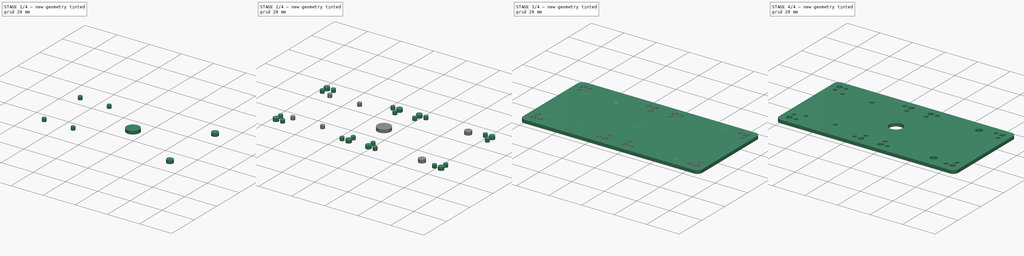
[diagram: build sequence overview — one tinted view per stage of 4, left to right]
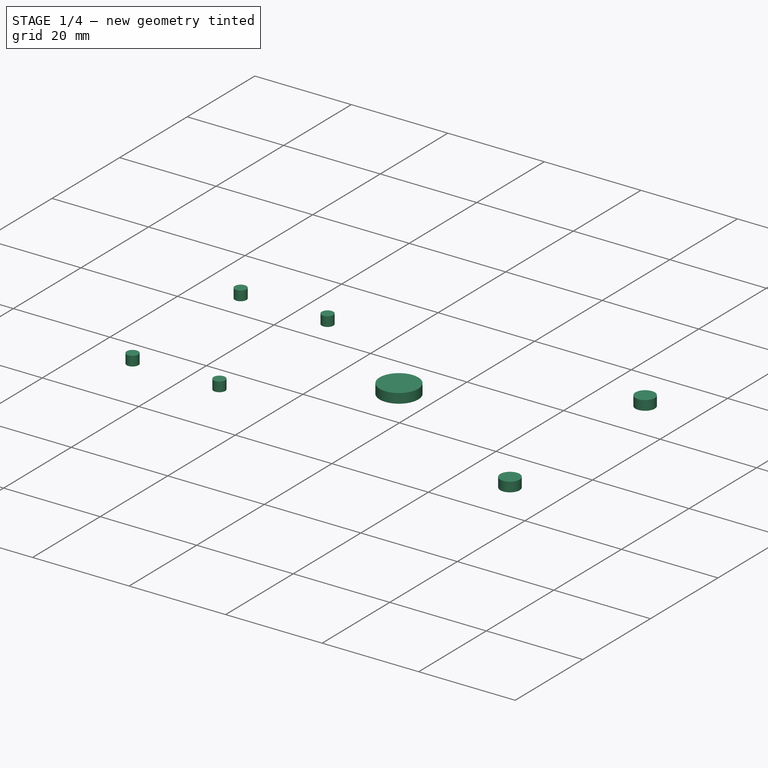
[diagram: stage 1 of 4 — iso view after this stage's code; geometry added in this stage tinted green]
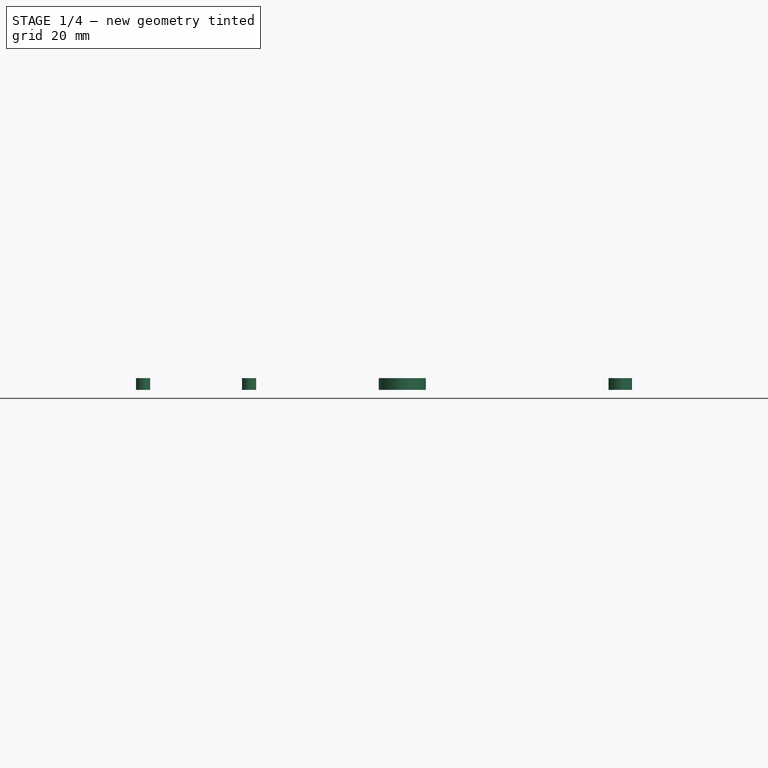
[diagram: stage 1 of 4 — front view after this stage's code; geometry added in this stage tinted green]
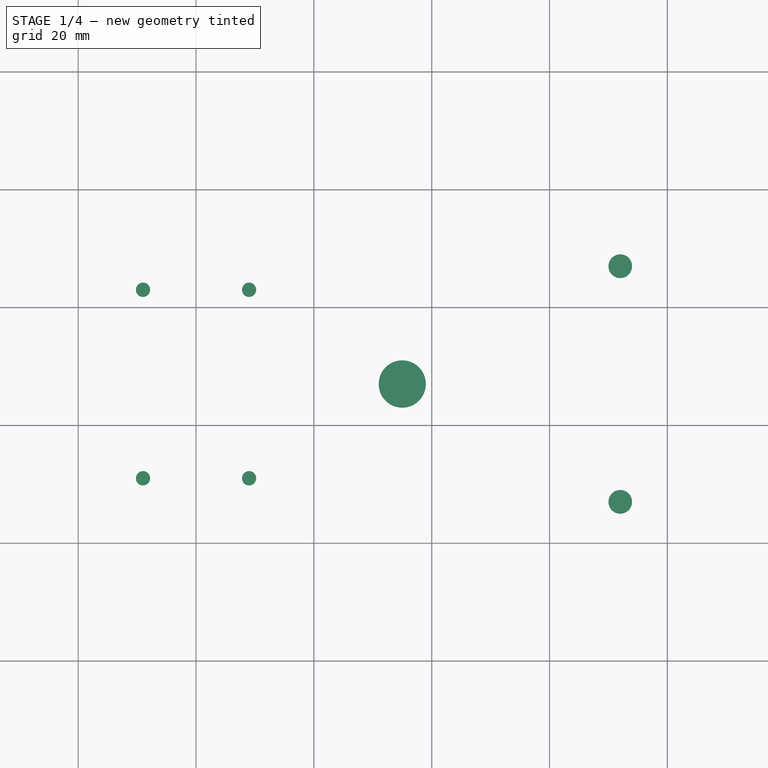
[diagram: stage 1 of 4 — top view after this stage's code; geometry added in this stage tinted green]
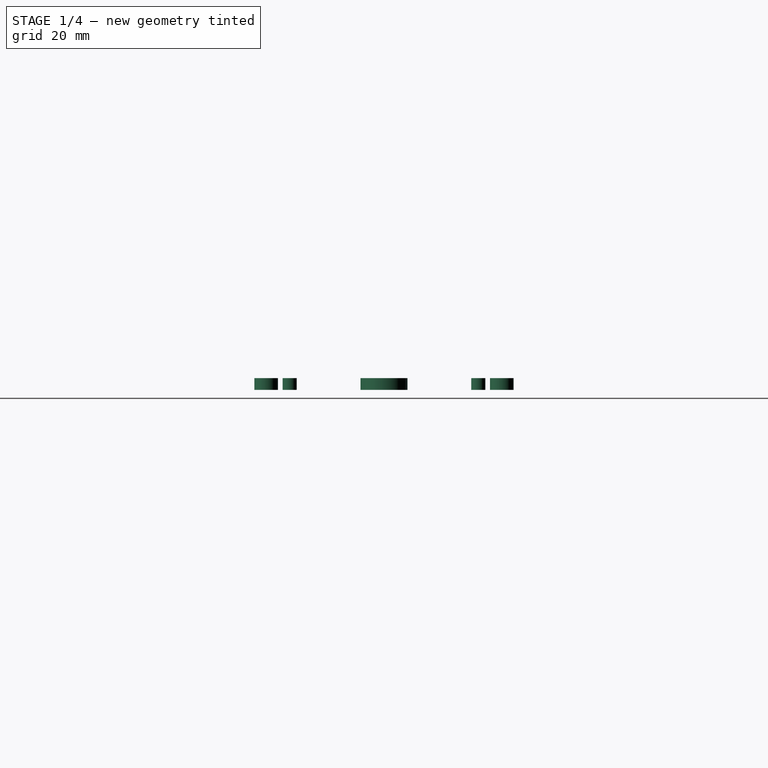
[diagram: stage 1 of 4 — right view after this stage's code; geometry added in this stage tinted green]
FCSTD DOCUMENT  (FreeCAD 0.18.4R)
Label: plate
License: All rights reserved
LicenseURL: http://en.wikipedia.org/wiki/All_rights_reserved
objects: Sketcher::SketchObject×5, Part::Extrusion×5, Part::Cut×4, Part::Mirroring×1, Part::Fuse×1, Spreadsheet::Sheet×1
note: 16 computed .brp shape members not serialized (recipe doc carries the construction recipe); baked Part::Feature solids carry a one-line shape summary decoded from their .brp

FEATURE [Sketcher::SketchObject] Sketch003
  expr: Constraints[11] = Spreadsheet.base_plate_y_length
  expr: Constraints[10] = Spreadsheet.base_plate_x_length
  sketch-geometry (11):
    g0: LineSegment [constr] StartX=0 StartY=54 StartZ=0 EndX=110 EndY=54 EndZ=0
    g1: LineSegment [constr] StartX=110 StartY=54 StartZ=0 EndX=110 EndY=0 EndZ=0
    g2: LineSegment [constr] StartX=110 StartY=0 StartZ=0 EndX=0 EndY=0 EndZ=0
    g3: LineSegment [constr] StartX=0 StartY=0 StartZ=0 EndX=0 EndY=54 EndZ=0
    g4: Circle CenterX=92 CenterY=7 CenterZ=0 NormalX=0 NormalY=0 NormalZ=1 AngleXU=0 Radius=2
    g5: Circle CenterX=92 CenterY=47 CenterZ=0 NormalX=0 NormalY=0 NormalZ=1 AngleXU=0 Radius=2
    g6: LineSegment [constr] StartX=92 StartY=47 StartZ=0 EndX=92 EndY=27 EndZ=0
    g7: LineSegment [constr] StartX=92 StartY=7 StartZ=0 EndX=92 EndY=27 EndZ=0
    g8: LineSegment [constr] StartX=92 StartY=7 StartZ=0 EndX=92 EndY=0 EndZ=0
    g9: LineSegment [constr] StartX=92 StartY=47 StartZ=0 EndX=92 EndY=54 EndZ=0
    g10: LineSegment [constr] StartX=92 StartY=47 StartZ=0 EndX=110 EndY=47 EndZ=0
  constraints (32):
    c: Coincident(g0,g1)
    c: Coincident(g1,g2)
    c: Coincident(g2,g3)
    c: Coincident(g3,g0)
    c: Horizontal(g0)
    c: Horizontal(g2)
    c: Vertical(g1)
    c: Vertical(g3)
    c: PointOnObject(g0,g-2)
    c: PointOnObject(g1,g-1)
    c: DistanceY(g1,g1) = 54
    c: DistanceX(g0,g0) = 110
    c: Radius(g4) = 2
    c: Equal(g4,g5) = 2
    c: Coincident(g6,g5)
    c: Vertical(g6)
    c: Coincident(g7,g4)
    c: Coincident(g7,g6)
    c: Vertical(g7)
    c: Equal(g6,g7)
    c: Coincident(g8,g4)
    c: PointOnObject(g8,g2)
    c: Vertical(g8)
    c: Coincident(g9,g5)
    c: PointOnObject(g9,g0)
    c: Vertical(g9)
    c: Equal(g9,g8)
    c: DistanceY(g6,g6) = 20
    c: Coincident(g10,g5)
    c: PointOnObject(g10,g1)
    c: Horizontal(g10)
    c: Distance(g10) = 18
FEATURE [Part::Extrusion] Extrude003
  Base = -> Sketch003
  Dir = (0,0,1)
  DirMode = 2
  FaceMakerClass = Part::FaceMakerBullseye
  LengthFwd = 2
  LengthRev = 0
  Solid = true
  Symmetric = false
FEATURE [Sketcher::SketchObject] Sketch006
  expr: Constraints[24] = Spreadsheet.motor_mount_holes_from_center_y
  expr: Constraints[45] = Spreadsheet.motors_plate_center_x_from_o
  expr: Constraints[17] = Spreadsheet.motors_plate_holes_span_x
  expr: Constraints[25] = Spreadsheet.base_plate_x_length
  sketch-geometry (18):
    g0: Circle CenterX=11 CenterY=11 CenterZ=0 NormalX=0 NormalY=0 NormalZ=1 AngleXU=0 Radius=1.2
    g1: Circle CenterX=29 CenterY=11 CenterZ=0 NormalX=0 NormalY=0 NormalZ=1 AngleXU=0 Radius=1.2
    g2: LineSegment [constr] StartX=11 StartY=11 StartZ=0 EndX=11 EndY=0 EndZ=0
    g3: LineSegment [constr] StartX=29 StartY=11 StartZ=0 EndX=29 EndY=0 EndZ=0
    g4: Circle CenterX=11 CenterY=43 CenterZ=0 NormalX=0 NormalY=0 NormalZ=1 AngleXU=0 Radius=1.2
    g5: Circle CenterX=29 CenterY=43 CenterZ=0 NormalX=0 NormalY=0 NormalZ=1 AngleXU=0 Radius=1.2
    g6: LineSegment [constr] StartX=11 StartY=43 StartZ=0 EndX=11 EndY=54 EndZ=0
    g7: LineSegment [constr] StartX=29 StartY=43 StartZ=0 EndX=29 EndY=54 EndZ=0
    g8: LineSegment [constr] StartX=20 StartY=0 StartZ=0 EndX=20 EndY=11 EndZ=0
    g9: LineSegment [constr] StartX=20 StartY=27 StartZ=0 EndX=20 EndY=43 EndZ=0
    g10: LineSegment [constr] StartX=20 StartY=43 StartZ=0 EndX=20 EndY=54 EndZ=0
    g11: LineSegment [constr] StartX=20 StartY=27 StartZ=0 EndX=20 EndY=11 EndZ=0
    g12: LineSegment [constr] StartX=11 StartY=54 StartZ=0 EndX=29 EndY=54 EndZ=0
    g13: LineSegment [constr] StartX=11 StartY=43 StartZ=0 EndX=11 EndY=11 EndZ=0
    g14: LineSegment [constr] StartX=29 StartY=43 StartZ=0 EndX=29 EndY=11 EndZ=0
    g15: LineSegment [constr] StartX=11 StartY=11 StartZ=0 EndX=20 EndY=11 EndZ=0
    g16: LineSegment [constr] StartX=29 StartY=11 StartZ=0 EndX=20 EndY=11 EndZ=0
    g17: LineSegment [constr] StartX=11 StartY=43 StartZ=0 EndX=20 EndY=43 EndZ=0
  constraints (49):
    c: Radius(g0) = 1.2
    c: Equal(g0,g1)
    c: Coincident(g2,g0)
    c: PointOnObject(g2,g-1)
    c: Vertical(g2)
    c: Coincident(g3,g1)
    c: PointOnObject(g3,g-1)
    c: Vertical(g3)
    c: Equal(g0,g4) = 1.2
    c: Equal(g4,g5)
    c: Coincident(g6,g4)
    c: Vertical(g6)
    c: Coincident(g7,g5)
    c: Vertical(g7)
    c: Equal(g7,g6)
    c: Equal(g6,g2)
    c: Equal(g2,g3)
    c: DistanceX(g4,g5) = 18
    c: PointOnObject(g8,g-1)
    c: Vertical(g9)
    c: Vertical(g10)
    c: Coincident(g11,g9)
    c: Vertical(g11)
    c: Equal(g9,g11)
    c: DistanceY(g9,g9) = 16
    c: DistanceY(g8,g10) = 54
    c: Vertical(g8)
    c: Coincident(g10,g9)
    c: Coincident(g8,g11)
    c: Coincident(g12,g6)
    c: Coincident(g12,g7)
    c: Horizontal(g12)
    c: PointOnObject(g10,g12)
    c: Coincident(g13,g4)
    c: Coincident(g13,g0)
    c: Vertical(g13)
    c: Coincident(g14,g5)
    c: Coincident(g14,g1)
    c: Vertical(g14)
    c: Coincident(g15,g0)
    c: Coincident(g15,g8)
    c: Coincident(g16,g1)
    c: Coincident(g16,g8)
    c: Horizontal(g15)
    c: Equal(g16,g15)
    c: DistanceX(g-1,g8) = 20
    c: Coincident(g17,g4)
    c: Coincident(g17,g9)
    c: Horizontal(g17)
FEATURE [Part::Extrusion] Extrude006
  Base = -> Sketch006
  Dir = (0,0,1)
  DirMode = 2
  FaceMakerClass = Part::FaceMakerBullseye
  LengthFwd = 2
  LengthRev = 0
  Solid = true
  Symmetric = false
FEATURE [Spreadsheet::Sheet] Spreadsheet
  cells = A1=Name; B1=Value; A2=Motors plate center x from o; B2(motors_plate_center_x_from_o)=20; A3=Motors plate holes span x; B3(motors_plate_holes_span_x)=18; A4=Motor mount holes from center y; B4(motor_mount_holes_from_center_y)=16; A5=Base plate length x; B5(base_plate_x_length)=54; A6=Base plate length y; B6(base_plate_y_length)=110
FEATURE [Sketcher::SketchObject] Sketch007
  expr: Constraints[8] = Spreadsheet.base_plate_y_length / 2
  expr: Constraints[7] = Spreadsheet.base_plate_x_length
  sketch-geometry (4):
    g0: Circle CenterX=55 CenterY=27 CenterZ=0 NormalX=0 NormalY=0 NormalZ=1 AngleXU=0 Radius=4
    g1: LineSegment [constr] StartX=55 StartY=54 StartZ=0 EndX=55 EndY=27 EndZ=0
    g2: LineSegment [constr] StartX=55 StartY=27 StartZ=0 EndX=55 EndY=0 EndZ=0
    g3: LineSegment [constr] StartX=55 StartY=54 StartZ=0 EndX=0 EndY=54 EndZ=0
  constraints (12):
    c: Coincident(g1,g0)
    c: PointOnObject(g2,g-1)
    c: PointOnObject(g3,g-2)
    c: Horizontal(g3)
    c: Vertical(g1)
    c: Vertical(g2)
    c: Coincident(g0,g2)
    c: DistanceY(g-1,g3) = 54
    c: DistanceX(g3,g3) = 55
    c: Coincident(g3,g1)
    c: Radius(g0) = 4
    c: Equal(g1,g2)
FEATURE [Part::Extrusion] Extrude008
  Base = -> Sketch007
  Dir = (0,0,1)
  DirMode = 2
  FaceMakerClass = Part::FaceMakerBullseye
  LengthFwd = 2
  LengthRev = 0
  Solid = true
  Symmetric = false
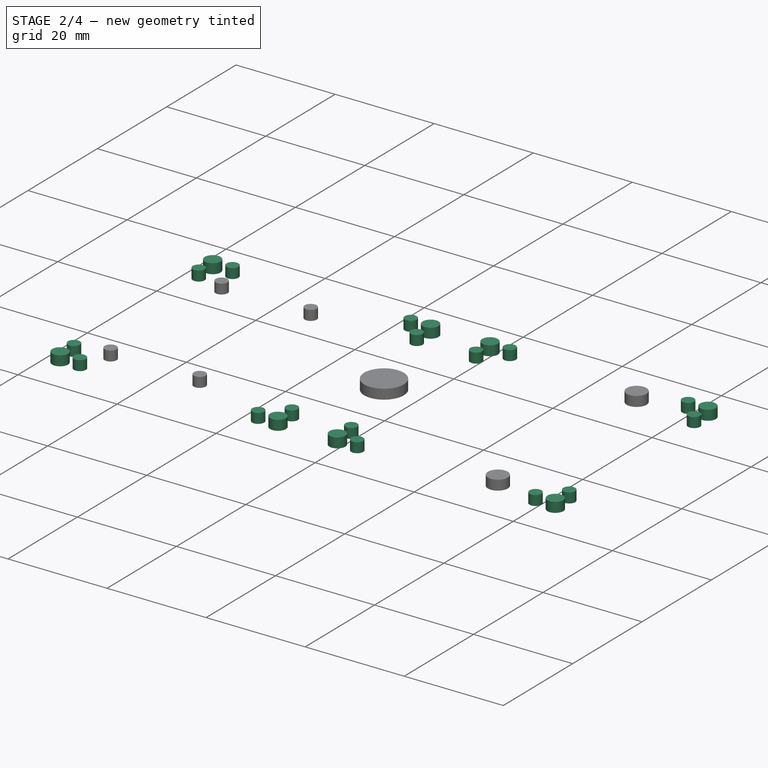
[diagram: stage 2 of 4 — iso view after this stage's code; geometry added in this stage tinted green]
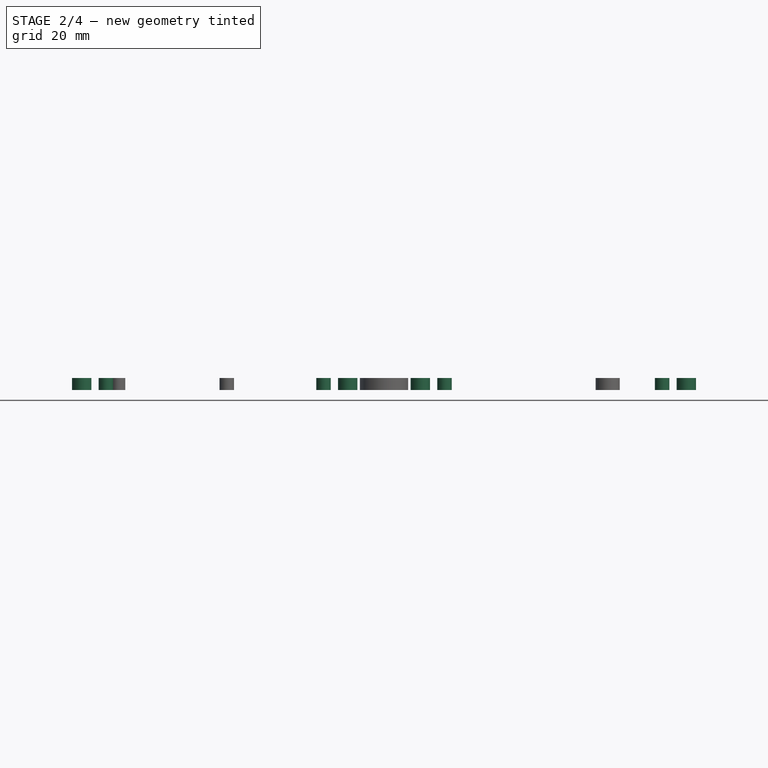
[diagram: stage 2 of 4 — front view after this stage's code; geometry added in this stage tinted green]
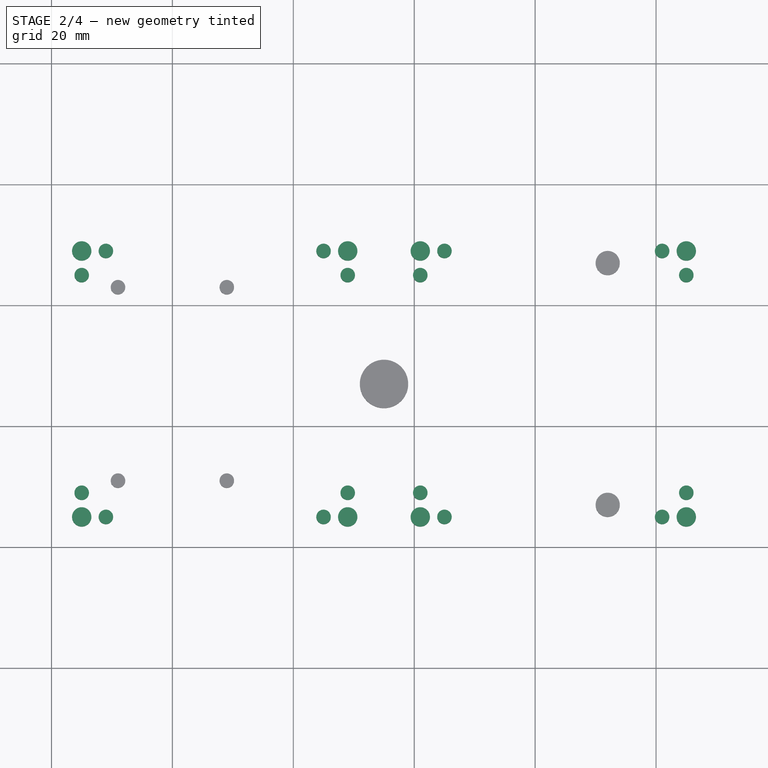
[diagram: stage 2 of 4 — top view after this stage's code; geometry added in this stage tinted green]
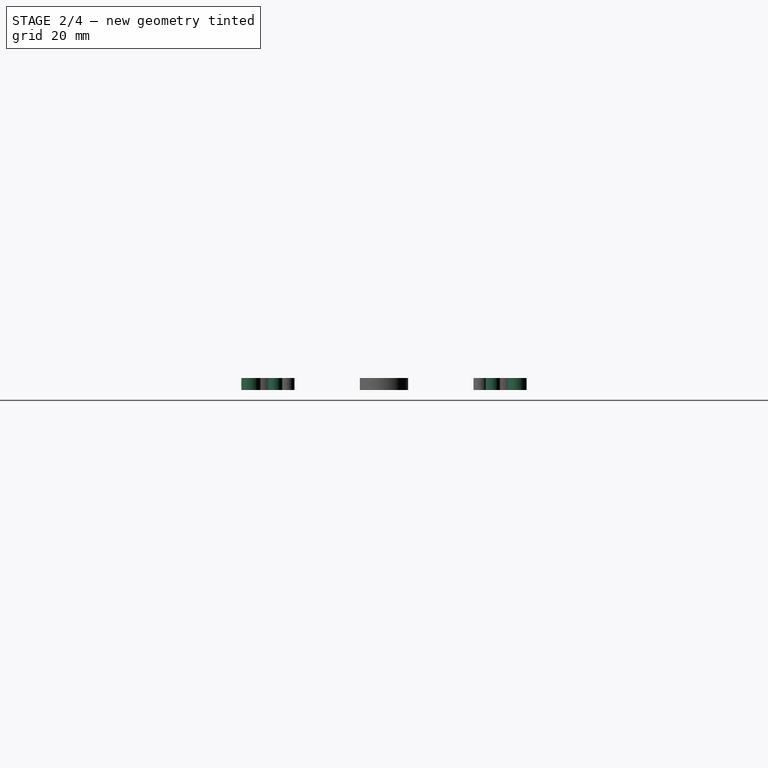
[diagram: stage 2 of 4 — right view after this stage's code; geometry added in this stage tinted green]
FEATURE [Sketcher::SketchObject] Sketch002
  expr: Constraints[10] = Spreadsheet.base_plate_y_length
  expr: Constraints[11] = Spreadsheet.base_plate_x_length
  sketch-geometry (30):
    g0: LineSegment [constr] StartX=0 StartY=54 StartZ=0 EndX=110 EndY=54 EndZ=0
    g1: LineSegment [constr] StartX=110 StartY=54 StartZ=0 EndX=110 EndY=0 EndZ=0
    g2: LineSegment [constr] StartX=110 StartY=0 StartZ=0 EndX=0 EndY=0 EndZ=0
    g3: LineSegment [constr] StartX=0 StartY=0 StartZ=0 EndX=0 EndY=54 EndZ=0
    g4: Circle CenterX=5 CenterY=5 CenterZ=0 NormalX=0 NormalY=0 NormalZ=1 AngleXU=0 Radius=1.6
    g5: Circle CenterX=49 CenterY=5 CenterZ=0 NormalX=0 NormalY=0 NormalZ=1 AngleXU=0 Radius=1.6
    g6: LineSegment [constr] StartX=5 StartY=5 StartZ=0 EndX=49 EndY=5 EndZ=0
    g7: Circle CenterX=5 CenterY=49 CenterZ=0 NormalX=0 NormalY=0 NormalZ=1 AngleXU=0 Radius=1.6
    g8: Circle CenterX=49 CenterY=49 CenterZ=0 NormalX=0 NormalY=0 NormalZ=1 AngleXU=0 Radius=1.6
    g9: LineSegment [constr] StartX=5 StartY=49 StartZ=0 EndX=49 EndY=49 EndZ=0
    g10: LineSegment [constr] StartX=5 StartY=49 StartZ=0 EndX=5 EndY=5 EndZ=0
    g11: LineSegment [constr] StartX=5 StartY=49 StartZ=0 EndX=5 EndY=54 EndZ=0
    g12: LineSegment [constr] StartX=5 StartY=5 StartZ=0 EndX=5 EndY=0 EndZ=0
    g13: LineSegment [constr] StartX=5 StartY=5 StartZ=0 EndX=0 EndY=5 EndZ=0
    g14: Circle CenterX=45 CenterY=49 CenterZ=0 NormalX=0 NormalY=0 NormalZ=1 AngleXU=0 Radius=1.2
    g15: Circle CenterX=9 CenterY=49 CenterZ=0 NormalX=0 NormalY=0 NormalZ=1 AngleXU=0 Radius=1.2
    g16: Circle CenterX=45 CenterY=5 CenterZ=0 NormalX=0 NormalY=0 NormalZ=1 AngleXU=0 Radius=1.2
    g17: Circle CenterX=9 CenterY=5 CenterZ=0 NormalX=0 NormalY=0 NormalZ=1 AngleXU=0 Radius=1.2
    g18: LineSegment [constr] StartX=9 StartY=49 StartZ=0 EndX=5 EndY=49 EndZ=0
    g19: LineSegment [constr] StartX=49 StartY=49 StartZ=0 EndX=45 EndY=49 EndZ=0
    g20: LineSegment [constr] StartX=45 StartY=5 StartZ=0 EndX=49 EndY=5 EndZ=0
    g21: LineSegment [constr] StartX=5 StartY=5 StartZ=0 EndX=9 EndY=5 EndZ=0
    g22: Circle CenterX=49 CenterY=45 CenterZ=0 NormalX=0 NormalY=0 NormalZ=1 AngleXU=0 Radius=1.2
    g23: Circle CenterX=5 CenterY=45 CenterZ=0 NormalX=0 NormalY=0 NormalZ=1 AngleXU=0 Radius=1.2
    g24: Circle CenterX=5 CenterY=9 CenterZ=0 NormalX=0 NormalY=0 NormalZ=1 AngleXU=0 Radius=1.2
    g25: Circle CenterX=49 CenterY=9 CenterZ=0 NormalX=0 NormalY=0 NormalZ=1 AngleXU=0 Radius=1.2
    g26: LineSegment [constr] StartX=5 StartY=49 StartZ=0 EndX=5 EndY=45 EndZ=0
    g27: LineSegment [constr] StartX=49 StartY=45 StartZ=0 EndX=49 EndY=49 EndZ=0
    g28: LineSegment [constr] StartX=49 StartY=9 StartZ=0 EndX=49 EndY=5 EndZ=0
    g29: LineSegment [constr] StartX=5 StartY=5 StartZ=0 EndX=5 EndY=9 EndZ=0
  constraints (79):
    c: Coincident(g0,g1)
    c: Coincident(g1,g2)
    c: Coincident(g2,g3)
    c: Coincident(g3,g0)
    c: Horizontal(g0)
    c: Horizontal(g2)
    c: Vertical(g1)
    c: Vertical(g3)
    c: PointOnObject(g0,g-2)
    c: PointOnObject(g1,g-1)
    c: DistanceX(g0,g0) = 110
    c: DistanceY(g1,g1) = 54
    c: Horizontal(g6)
    c: Equal(g5,g4)
    c: Radius(g4) = 1.6
    c: Coincident(g5,g6)
    c: Horizontal(g9)
    c: Equal(g6,g9) = 44
    c: Equal(g8,g7)
    c: Equal(g4,g7) = 1.6
    c: Coincident(g8,g9)
    c: Coincident(g10,g7)
    c: Vertical(g10)
    c: Coincident(g10,g4)
    c: Coincident(g4,g6)
    c: Distance(g6) = 44
    c: Equal(g10,g6)
    c: Coincident(g7,g9)
    c: Coincident(g11,g7)
    c: PointOnObject(g11,g0)
    c: Vertical(g11)
    c: Coincident(g12,g4)
    c: PointOnObject(g12,g2)
    c: Vertical(g12)
    c: Equal(g11,g12)
    c: Coincident(g13,g4)
    c: PointOnObject(g13,g3)
    c: Horizontal(g13)
    c: DistanceX(g13,g13) = 5
    c: Radius(g14) = 1.2
    c: Equal(g14,g15)
    c: Equal(g14,g16) = 1.2
    c: Equal(g16,g17)
    c: Coincident(g18,g15)
    c: Coincident(g18,g7)
    c: Coincident(g19,g8)
    c: Coincident(g19,g14)
    c: Coincident(g20,g16)
    c: Coincident(g20,g5)
    c: Coincident(g21,g17)
    c: Equal(g18,g21)
    c: Equal(g21,g20)
    c: Equal(g20,g19)
    c: DistanceX(g19,g19) = 4
    c: Horizontal(g19)
    c: Horizontal(g18)
    c: Horizontal(g20)
    c: Coincident(g21,g4)
    c: Horizontal(g21)
    c: Equal(g14,g22) = 1.2
    c: Equal(g22,g23)
    c: Equal(g24,g25)
    c: Equal(g24,g17)
    c: Coincident(g26,g7)
    c: Coincident(g26,g23)
    c: Coincident(g27,g22)
    c: Coincident(g27,g8)
    c: Coincident(g28,g25)
    c: Coincident(g29,g4)
    c: Coincident(g29,g24)
    c: Coincident(g5,g28)
    c: Equal(g27,g26)
    c: Equal(g26,g29)
    c: Equal(g29,g28)
    c: Vertical(g26)
    c: Vertical(g29)
    c: Vertical(g27)
    c: Vertical(g28)
    c: Distance(g28) = 4
FEATURE [Part::Extrusion] Extrude002
  Base = -> Sketch002
  Dir = (0,0,1)
  DirMode = 2
  FaceMakerClass = Part::FaceMakerBullseye
  LengthFwd = 2
  LengthRev = 0
  Solid = true
  Symmetric = false
FEATURE [Part::Mirroring] Part__Mirroring001  label="Extrude002 (Mirror #2)"
  Base = (55,0,0)
  Normal = (1,0,0)
  Source = -> Extrude002
  expr: Base.x = Spreadsheet.base_plate_y_length / 2
FEATURE [Part::Fuse] Fusion001
  Base = -> Extrude002
  Tool = -> Part__Mirroring001
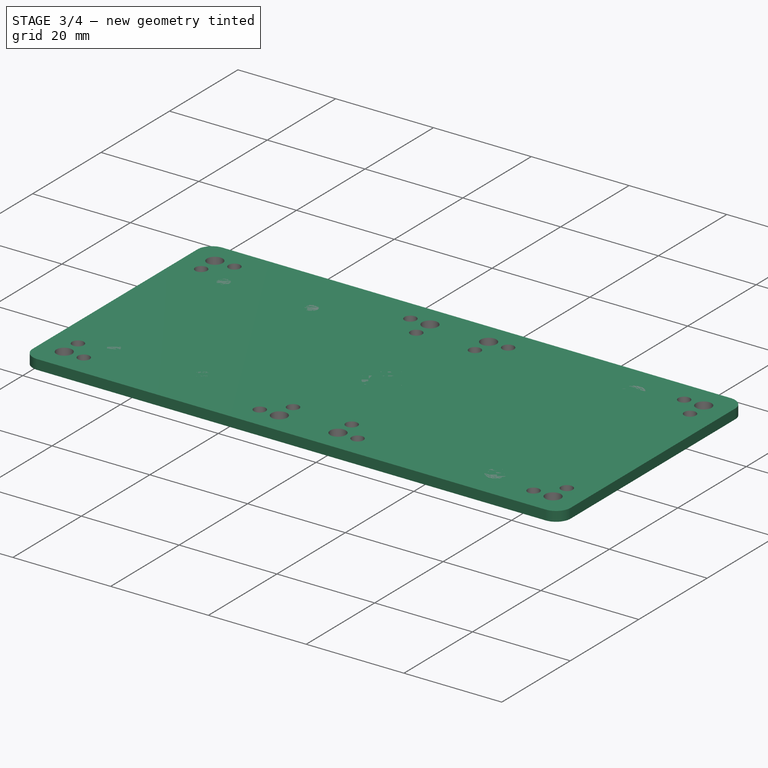
[diagram: stage 3 of 4 — iso view after this stage's code; geometry added in this stage tinted green]
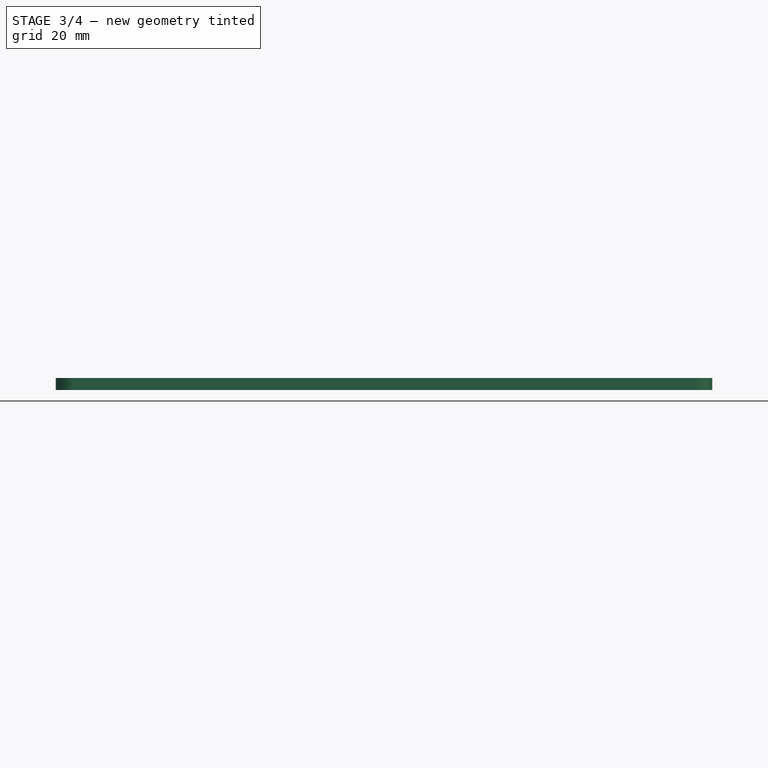
[diagram: stage 3 of 4 — front view after this stage's code; geometry added in this stage tinted green]
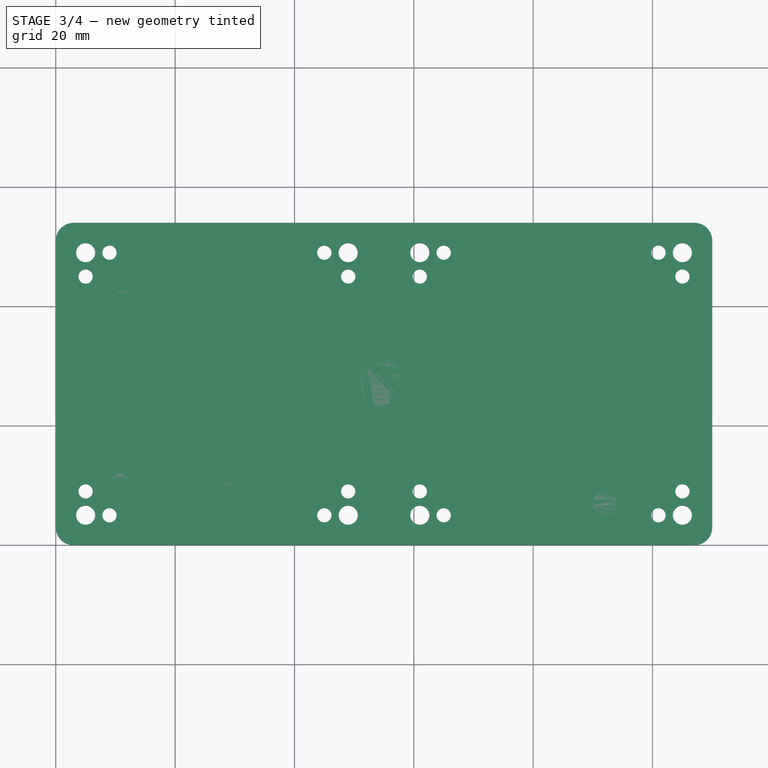
[diagram: stage 3 of 4 — top view after this stage's code; geometry added in this stage tinted green]
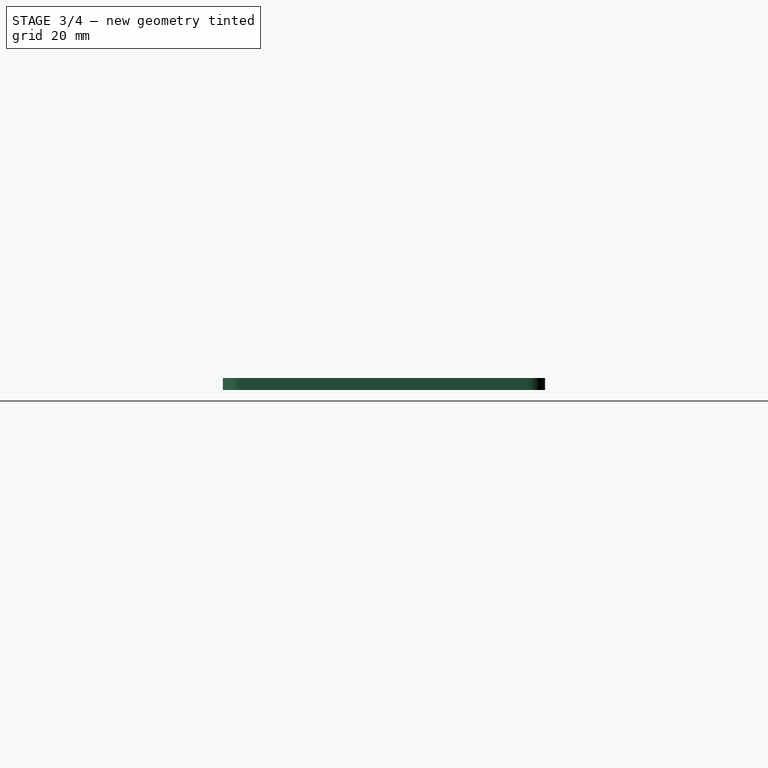
[diagram: stage 3 of 4 — right view after this stage's code; geometry added in this stage tinted green]
FEATURE [Sketcher::SketchObject] Sketch
  expr: Constraints[19] = Spreadsheet.base_plate_x_length
  expr: Constraints[18] = Spreadsheet.base_plate_y_length
  sketch-geometry (8):
    g0: LineSegment StartX=3 StartY=54 StartZ=0 EndX=107 EndY=54 EndZ=0
    g1: LineSegment StartX=110 StartY=51 StartZ=0 EndX=110 EndY=3 EndZ=0
    g2: LineSegment StartX=107 StartY=0 StartZ=0 EndX=3 EndY=0 EndZ=0
    g3: LineSegment StartX=0 StartY=3 StartZ=0 EndX=0 EndY=51 EndZ=0
    g4: ArcOfCircle CenterX=3 CenterY=51 CenterZ=0 NormalX=0 NormalY=0 NormalZ=1 AngleXU=0 Radius=3 StartAngle=1.5708 EndAngle=3.14159
    g5: ArcOfCircle CenterX=3 CenterY=3 CenterZ=0 NormalX=0 NormalY=0 NormalZ=1 AngleXU=0 Radius=3 StartAngle=3.14159 EndAngle=4.71239
    g6: ArcOfCircle CenterX=107 CenterY=3 CenterZ=0 NormalX=0 NormalY=0 NormalZ=1 AngleXU=0 Radius=3 StartAngle=4.71239 EndAngle=6.28319
    g7: ArcOfCircle CenterX=107 CenterY=51 CenterZ=0 NormalX=0 NormalY=0 NormalZ=1 AngleXU=0 Radius=3 StartAngle=0 EndAngle=1.5708
  constraints (20):
    c: Horizontal(g0)
    c: Horizontal(g2)
    c: Vertical(g1)
    c: Vertical(g3)
    c: Tangent(g0,g4) = 1.5708
    c: Tangent(g3,g4) = 1.5708
    c: Tangent(g2,g5) = 1.5708
    c: Tangent(g3,g5) = 1.5708
    c: Tangent(g1,g6) = 1.5708
    c: Tangent(g2,g6) = 1.5708
    c: Tangent(g0,g7) = 1.5708
    c: Tangent(g1,g7) = 1.5708
    c: Radius(g4) = 3
    c: Equal(g4,g5)
    c: Equal(g4,g6)
    c: Equal(g4,g7)
    c: PointOnObject(g2,g-1)
    c: PointOnObject(g3,g-2)
    c: DistanceX(g3,g1) = 110
    c: DistanceY(g2,g0) = 54
FEATURE [Part::Extrusion] Extrude
  Base = -> Sketch
  Dir = (0,0,1)
  DirMode = 2
  FaceMakerClass = Part::FaceMakerBullseye
  LengthFwd = 2
  LengthRev = 0
  Solid = true
  Symmetric = false
FEATURE [Part::Cut] Cut001
  Base = -> Extrude
  Tool = -> Fusion001
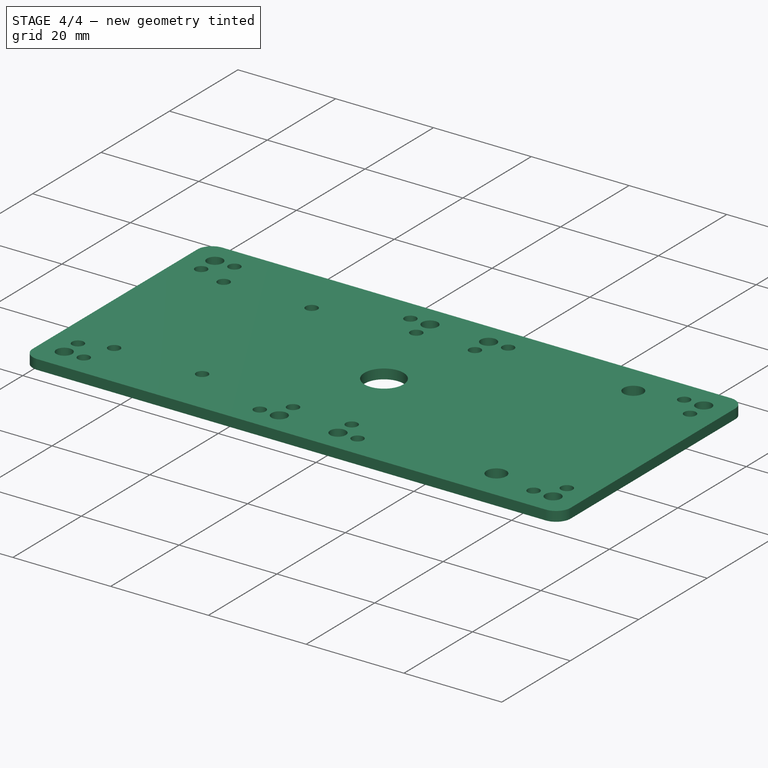
[diagram: stage 4 of 4 — iso view after this stage's code; geometry added in this stage tinted green]
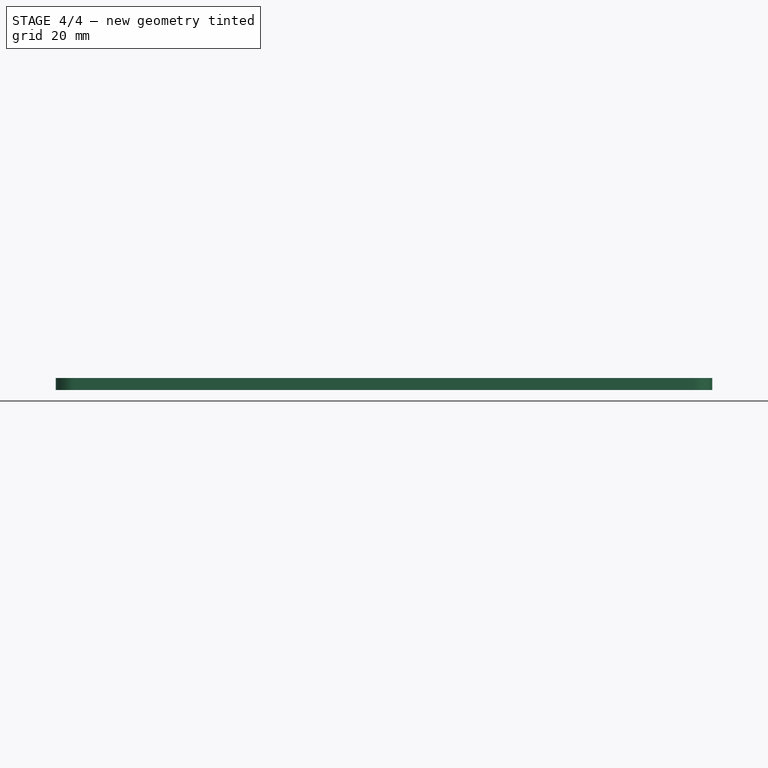
[diagram: stage 4 of 4 — front view after this stage's code; geometry added in this stage tinted green]
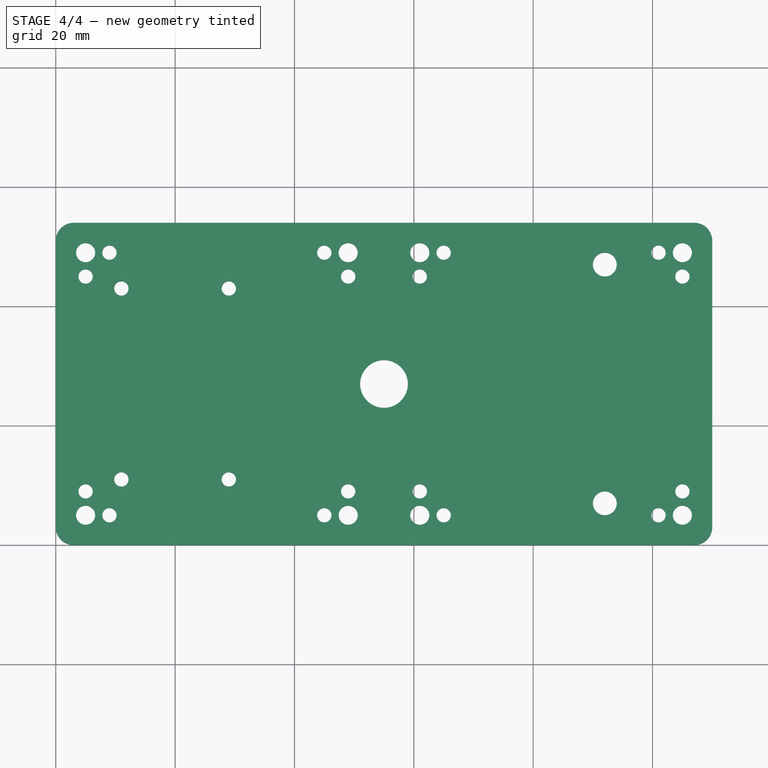
[diagram: stage 4 of 4 — top view after this stage's code; geometry added in this stage tinted green]
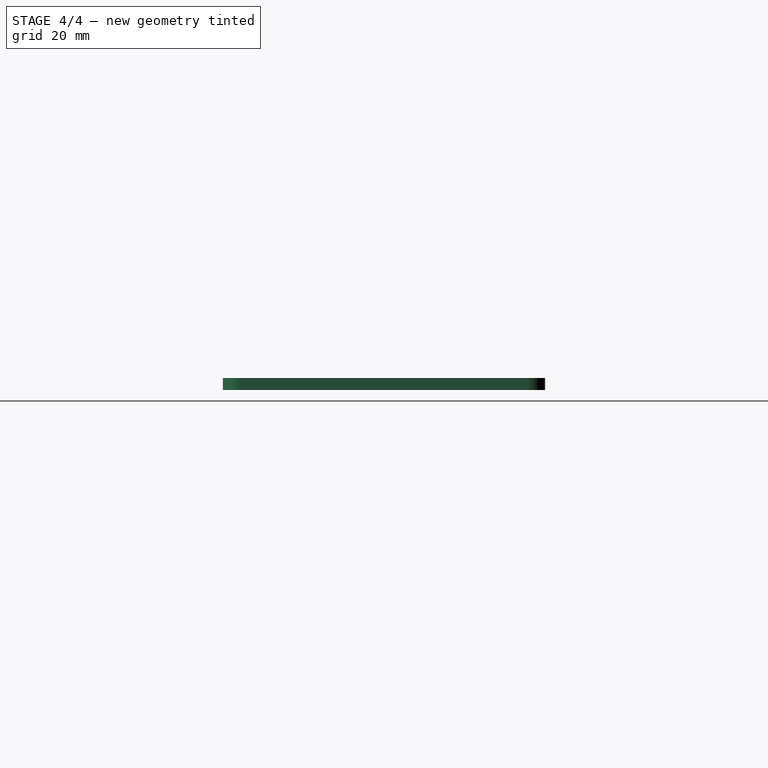
[diagram: stage 4 of 4 — right view after this stage's code; geometry added in this stage tinted green]
FEATURE [Part::Cut] Cut002
  Base = -> Cut001
  Tool = -> Extrude003
FEATURE [Part::Cut] Cut003
  Base = -> Cut002
  Tool = -> Extrude006
FEATURE [Part::Cut] Cut004
  Base = -> Cut003
  Tool = -> Extrude008
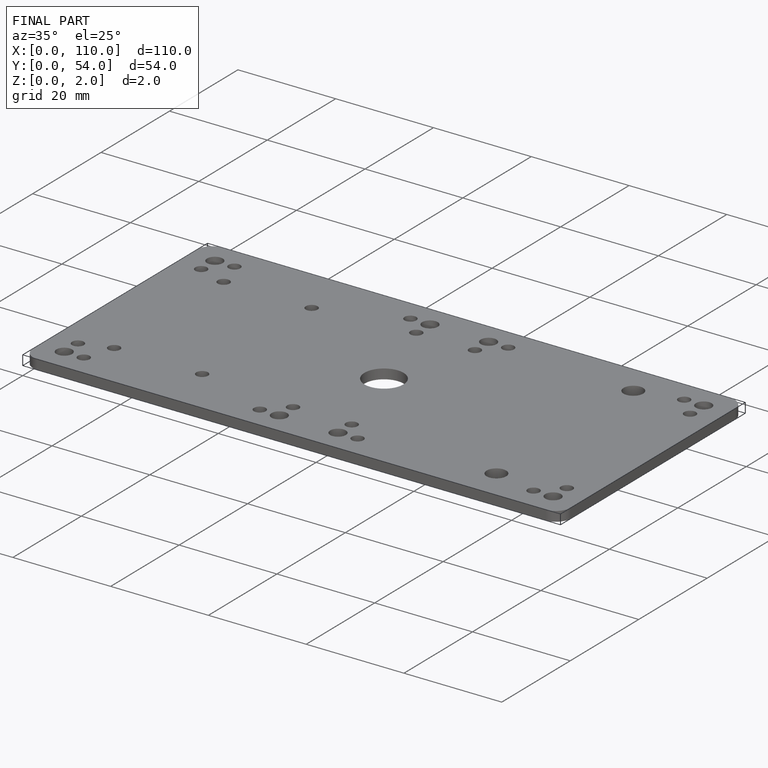
[diagram: finished part — iso view with bounding-box wireframe]
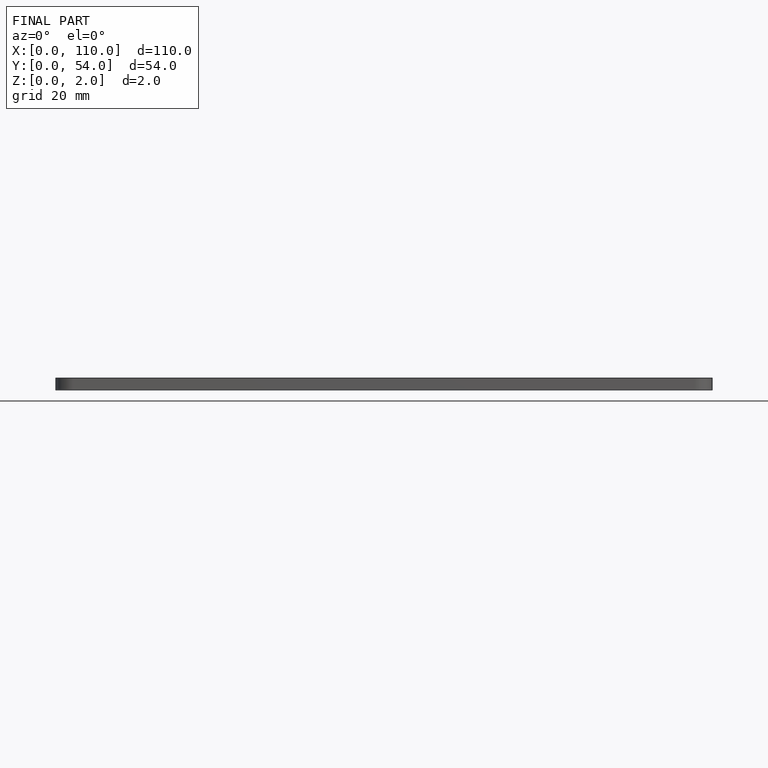
[diagram: finished part — front view with bounding-box wireframe]
